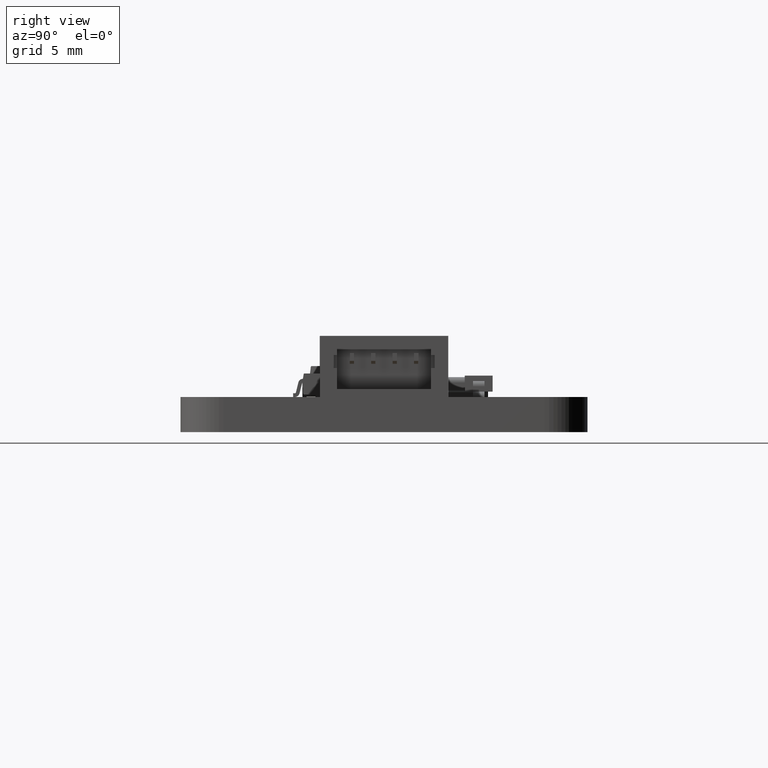
[diagram: clean part render]
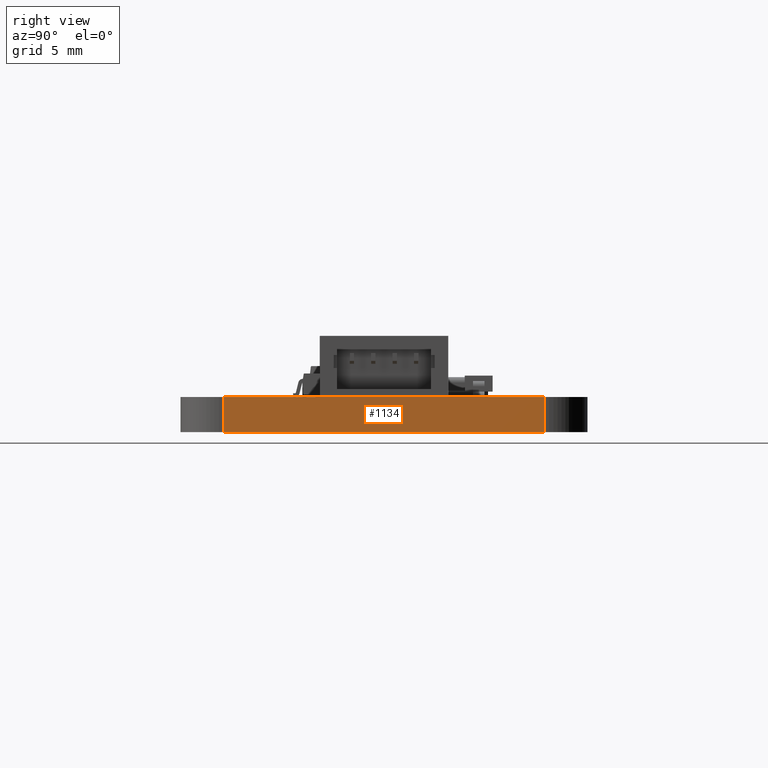
[diagram: same view with one face highlighted and labeled with its STEP entity id]
A machine part, right view. The second image highlights one B-rep face of the part: STEP entity #1134.
In plain terms, the highlighted planar face has unit normal (-1, 0, 0).
Its self-contained STEP definition (entity closure, byte-faithful):
#1076 = EDGE_CURVE('',#1077,#1079,#1081,.T.);
#1077 = VERTEX_POINT('',#1078);
#1078 = CARTESIAN_POINT('',(28.,-2.,-0.82));
#1079 = VERTEX_POINT('',#1080);
#1080 = CARTESIAN_POINT('',(28.,-2.,0.82));
#1081 = LINE('',#1082,#1083);
#1082 = CARTESIAN_POINT('',(28.,-2.,-0.82));
#1083 = VECTOR('',#1084,1.);
#1084 = DIRECTION('',(0.E+000,0.E+000,1.));
#1134 = ADVANCED_FACE('',(#1135),#1160,.F.);
#1135 = FACE_BOUND('',#1136,.F.);
#1136 = EDGE_LOOP('',(#1137,#1147,#1153,#1154));
#1137 = ORIENTED_EDGE('',*,*,#1138,.T.);
#1138 = EDGE_CURVE('',#1139,#1141,#1143,.T.);
#1139 = VERTEX_POINT('',#1140);
#1140 = CARTESIAN_POINT('',(28.,-17.,-0.82));
#1141 = VERTEX_POINT('',#1142);
#1142 = CARTESIAN_POINT('',(28.,-17.,0.82));
#1143 = LINE('',#1144,#1145);
#1144 = CARTESIAN_POINT('',(28.,-17.,-0.82));
#1145 = VECTOR('',#1146,1.);
#1146 = DIRECTION('',(0.E+000,0.E+000,1.));
#1147 = ORIENTED_EDGE('',*,*,#1148,.T.);
#1148 = EDGE_CURVE('',#1141,#1079,#1149,.T.);
#1149 = LINE('',#1150,#1151);
#1150 = CARTESIAN_POINT('',(28.,-17.,0.82));
#1151 = VECTOR('',#1152,1.);
#1152 = DIRECTION('',(0.E+000,1.,0.E+000));
#1153 = ORIENTED_EDGE('',*,*,#1076,.F.);
#1154 = ORIENTED_EDGE('',*,*,#1155,.F.);
#1155 = EDGE_CURVE('',#1139,#1077,#1156,.T.);
#1156 = LINE('',#1157,#1158);
#1157 = CARTESIAN_POINT('',(28.,-17.,-0.82));
#1158 = VECTOR('',#1159,1.);
#1159 = DIRECTION('',(0.E+000,1.,0.E+000));
#1160 = PLANE('',#1161);
#1161 = AXIS2_PLACEMENT_3D('',#1162,#1163,#1164);
#1162 = CARTESIAN_POINT('',(28.,-17.,-0.82));
#1163 = DIRECTION('',(-1.,0.E+000,0.E+000));
#1164 = DIRECTION('',(0.E+000,1.,0.E+000));